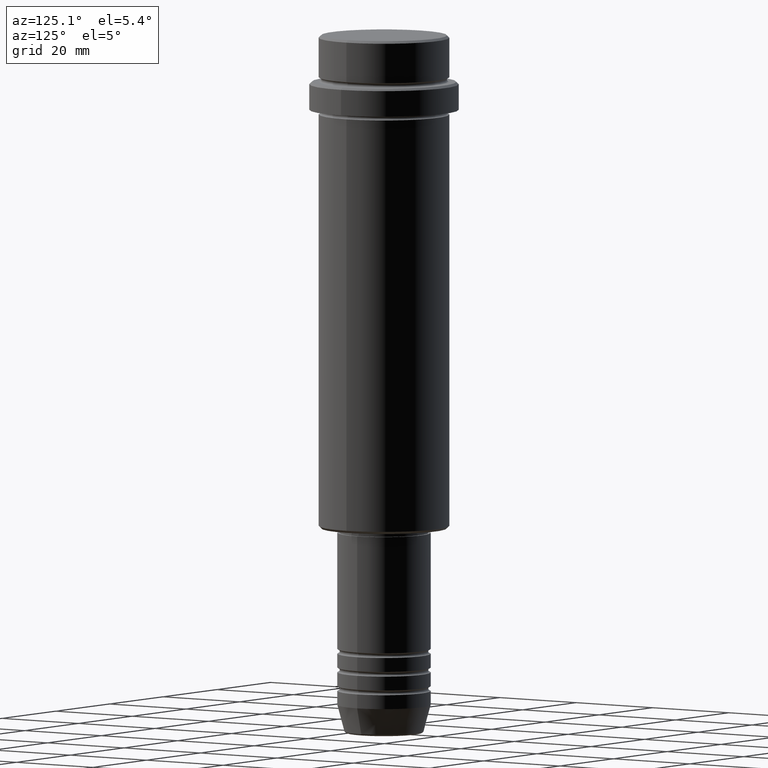
[diagram: clean part render]
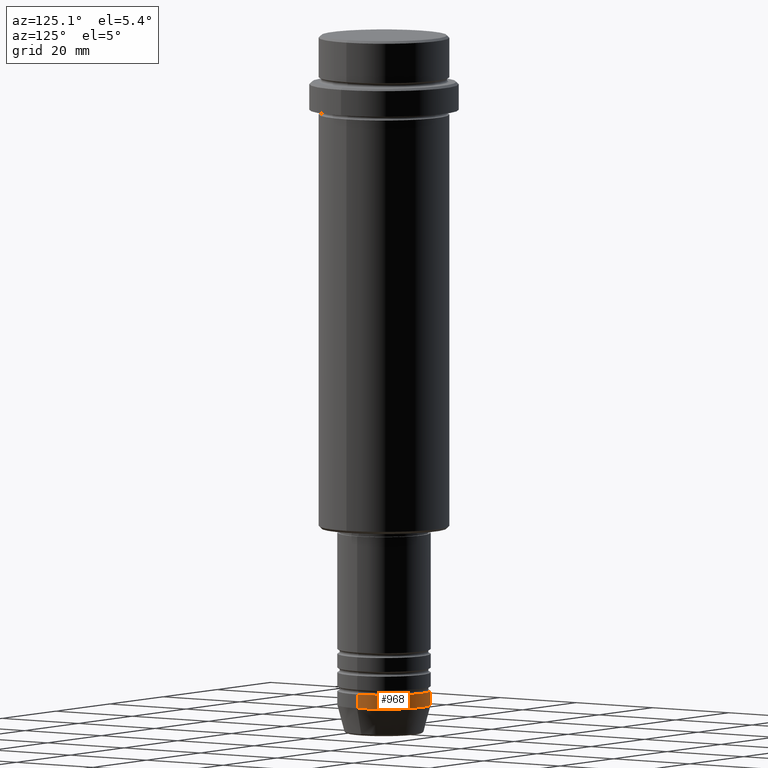
[diagram: same view with one face highlighted and labeled with its STEP entity id]
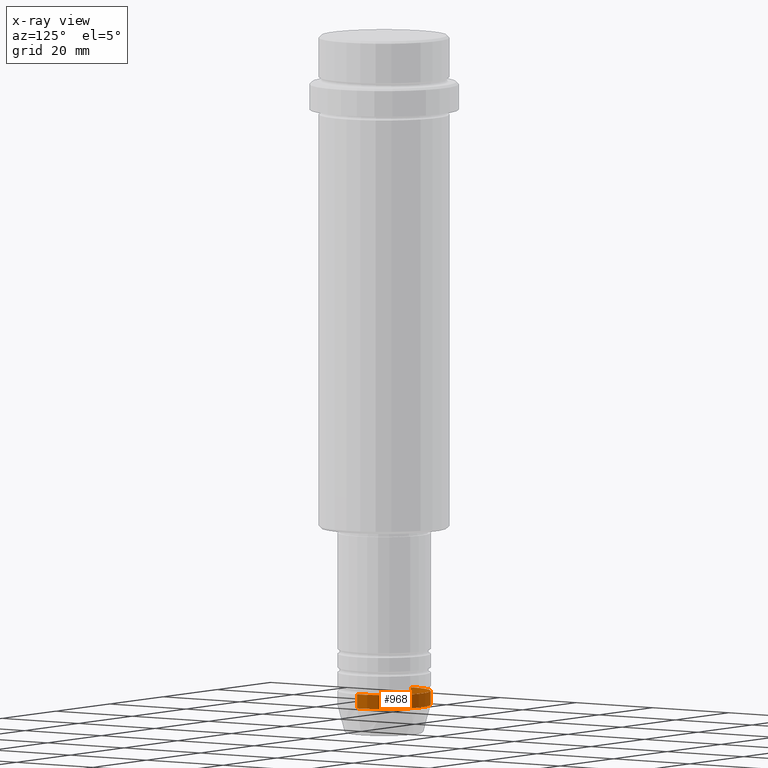
[diagram: x-ray of the same camera — body ghosted, the highlighted face saturated]
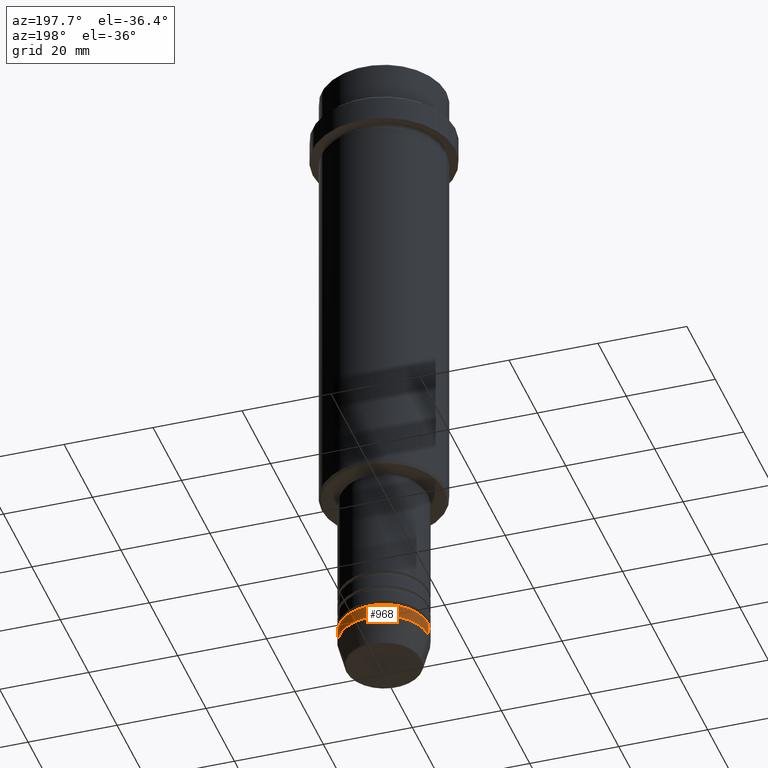
[diagram: same view with one face highlighted and labeled with its STEP entity id]
A machine part, auxiliary view. The second image highlights one B-rep face of the part: STEP entity #968.
The next image is the same camera in x-ray: the body ghosted, the highlighted face saturated — about 0% of this face is hidden behind the body in this view.
A second angle (auxiliary view) of the same face is appended — the face is thin or edge-on in the first view.
In plain terms, the highlighted cylindrical surface (partial cylindrical patch) has radius 10 mm, axis along (-0, -0, 1).
Its self-contained STEP definition (entity closure, byte-faithful):
#9 = VERTEX_POINT ( 'NONE', #406 ) ;
#18 = DIRECTION ( 'NONE',  ( 1.000000000000000000, 0.000000000000000000, 0.000000000000000000 ) ) ;
#24 = LINE ( 'NONE', #1333, #1220 ) ;
#26 = ORIENTED_EDGE ( 'NONE', *, *, #317, .T. ) ;
#64 = FACE_OUTER_BOUND ( 'NONE', #1135, .T. ) ;
#103 = EDGE_CURVE ( 'NONE', #464, #927, #325, .T. ) ;
#118 = CARTESIAN_POINT ( 'NONE',  ( 10.00000000000000000, 0.000000000000000000, -144.0000000000000284 ) ) ;
#164 = ORIENTED_EDGE ( 'NONE', *, *, #103, .F. ) ;
#215 = EDGE_CURVE ( 'NONE', #927, #9, #929, .T. ) ;
#280 = CARTESIAN_POINT ( 'NONE',  ( -10.00000000000000000, 1.224646799147353256E-15, -144.0000000000000284 ) ) ;
#317 = EDGE_CURVE ( 'NONE', #539, #9, #24, .T. ) ;
#318 = CARTESIAN_POINT ( 'NONE',  ( 0.000000000000000000, 0.000000000000000000, -141.0000000000000000 ) ) ;
#325 = LINE ( 'NONE', #1319, #894 ) ;
#339 = DIRECTION ( 'NONE',  ( 1.000000000000000000, 0.000000000000000000, 0.000000000000000000 ) ) ;
#406 = CARTESIAN_POINT ( 'NONE',  ( -10.00000000000000000, 1.224646799147353256E-15, -141.0000000000000000 ) ) ;
#420 = CARTESIAN_POINT ( 'NONE',  ( 0.000000000000000000, 0.000000000000000000, -144.0000000000000284 ) ) ;
#462 = DIRECTION ( 'NONE',  ( -0.000000000000000000, -0.000000000000000000, 1.000000000000000000 ) ) ;
#464 = VERTEX_POINT ( 'NONE', #118 ) ;
#539 = VERTEX_POINT ( 'NONE', #280 ) ;
#574 = AXIS2_PLACEMENT_3D ( 'NONE', #420, #1073, #339 ) ;
#590 = CIRCLE ( 'NONE', #574, 10.00000000000000000 ) ;
#697 = DIRECTION ( 'NONE',  ( -0.000000000000000000, -0.000000000000000000, 1.000000000000000000 ) ) ;
#760 = ORIENTED_EDGE ( 'NONE', *, *, #215, .F. ) ;
#777 = ORIENTED_EDGE ( 'NONE', *, *, #1210, .T. ) ;
#790 = DIRECTION ( 'NONE',  ( -0.000000000000000000, -0.000000000000000000, 1.000000000000000000 ) ) ;
#894 = VECTOR ( 'NONE', #790, 1000.000000000000000 ) ;
#917 = CARTESIAN_POINT ( 'NONE',  ( 10.00000000000000000, 0.000000000000000000, -141.0000000000000000 ) ) ;
#927 = VERTEX_POINT ( 'NONE', #917 ) ;
#929 = CIRCLE ( 'NONE', #1043, 10.00000000000000000 ) ;
#968 = ADVANCED_FACE ( 'NONE', ( #64 ), #1119, .T. ) ;
#1008 = AXIS2_PLACEMENT_3D ( 'NONE', #1136, #697, #1125 ) ;
#1043 = AXIS2_PLACEMENT_3D ( 'NONE', #318, #1296, #18 ) ;
#1073 = DIRECTION ( 'NONE',  ( -0.000000000000000000, -0.000000000000000000, 1.000000000000000000 ) ) ;
#1119 = CYLINDRICAL_SURFACE ( 'NONE', #1008, 10.00000000000000000 ) ;
#1125 = DIRECTION ( 'NONE',  ( 1.000000000000000000, 0.000000000000000000, 0.000000000000000000 ) ) ;
#1135 = EDGE_LOOP ( 'NONE', ( #777, #26, #760, #164 ) ) ;
#1136 = CARTESIAN_POINT ( 'NONE',  ( 0.000000000000000000, 0.000000000000000000, 0.000000000000000000 ) ) ;
#1210 = EDGE_CURVE ( 'NONE', #464, #539, #590, .T. ) ;
#1220 = VECTOR ( 'NONE', #462, 1000.000000000000000 ) ;
#1296 = DIRECTION ( 'NONE',  ( -0.000000000000000000, -0.000000000000000000, 1.000000000000000000 ) ) ;
#1319 = CARTESIAN_POINT ( 'NONE',  ( 10.00000000000000000, 0.000000000000000000, 0.000000000000000000 ) ) ;
#1333 = CARTESIAN_POINT ( 'NONE',  ( -10.00000000000000000, 1.224646799147353256E-15, 0.000000000000000000 ) ) ;